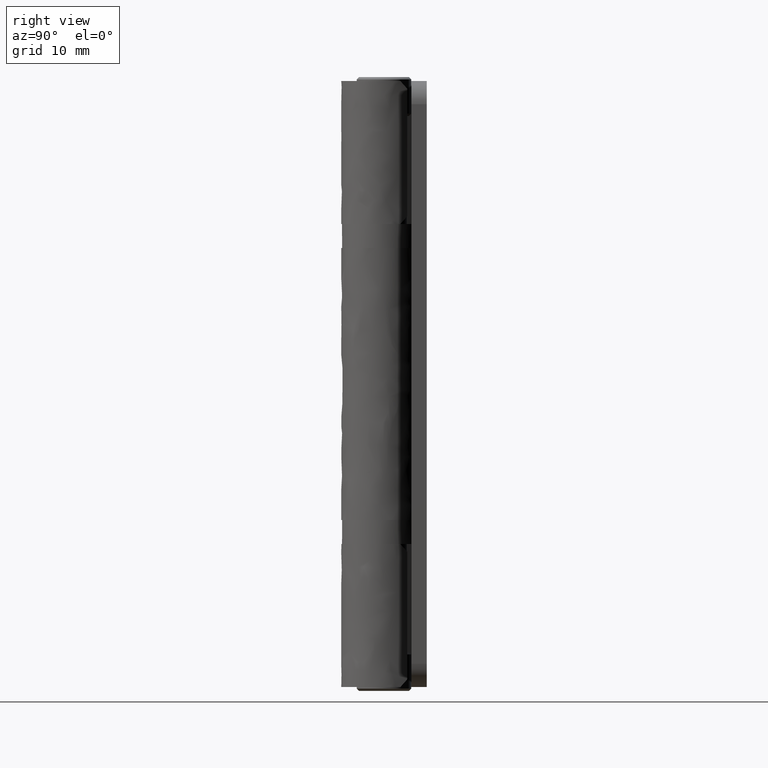
[diagram: clean part render]
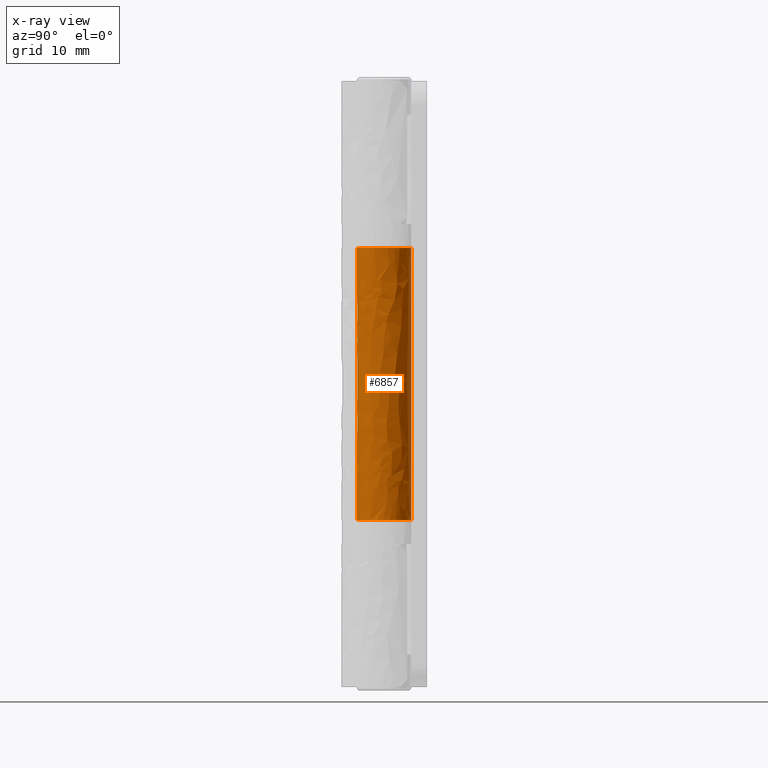
[diagram: x-ray — body ghosted, one internal face saturated and labeled with its STEP entity id]
A machine part, right view, then the same camera in x-ray: the body is ghosted and one INTERNAL B-rep face — a face not visible from any outside direction — is saturated and labeled: STEP entity #6857.
In plain terms, the highlighted face is a freeform B-spline surface patch.
Its self-contained STEP definition (entity closure, byte-faithful):
#5907=CARTESIAN_POINT('',(-2.273737E-013,3.499999999999945,21.500000000000298));
#5908=VERTEX_POINT('',#5907);
#5914=CARTESIAN_POINT('',(-2.273737E-013,3.499999999999945,56.500000000000000));
#5915=VERTEX_POINT('',#5914);
#5916=CARTESIAN_POINT('',(-2.273737E-013,3.499999999999945,56.500000000000000));
#5917=CARTESIAN_POINT('',(-2.273737E-013,3.499999999999945,21.500000000000298));
#5918=QUASI_UNIFORM_CURVE('',1,(#5916,#5917),.UNSPECIFIED.,.F.,.U.);
#5919=EDGE_CURVE('',#5915,#5908,#5918,.T.);
#6118=CARTESIAN_POINT('',(-3.480014533395040,-0.373495444899267,56.500000000000000));
#6119=VERTEX_POINT('',#6118);
#6125=CARTESIAN_POINT('',(-3.441662581124880,0.636363636363667,55.500000000000000));
#6126=VERTEX_POINT('',#6125);
#6127=CARTESIAN_POINT('',(-3.441662581124880,0.636363636363667,55.500000000000000));
#6128=CARTESIAN_POINT('',(-3.503111202640664,0.306330602472713,55.835704574718513));
#6129=CARTESIAN_POINT('',(-3.516002114092028,-0.032698877792117,56.171426969979287));
#6130=CARTESIAN_POINT('',(-3.480014533395040,-0.373495444899267,56.500000000000000));
#6131=B_SPLINE_CURVE_WITH_KNOTS('',3,(#6127,#6128,#6129,#6130),.UNSPECIFIED.,.F.,.U.,(4,4),(1.512627E-009,1.424276179852633),.UNSPECIFIED.);
#6132=EDGE_CURVE('',#6126,#6119,#6131,.T.);
#6147=CARTESIAN_POINT('',(-3.480014533395030,-0.373495444899323,21.500000000000298));
#6148=VERTEX_POINT('',#6147);
#6149=CARTESIAN_POINT('',(-3.441662581124880,0.636363636363667,22.500000000000501));
#6150=VERTEX_POINT('',#6149);
#6151=CARTESIAN_POINT('',(-3.480014533395030,-0.373495444899323,21.500000000000298));
#6152=CARTESIAN_POINT('',(-3.516001896993218,-0.032699328519484,21.828572626278749));
#6153=CARTESIAN_POINT('',(-3.503111424831852,0.306330394216047,22.164295180097909));
#6154=CARTESIAN_POINT('',(-3.441662581124880,0.636363636363667,22.500000000000501));
#6155=B_SPLINE_CURVE_WITH_KNOTS('',3,(#6151,#6152,#6153,#6154),.UNSPECIFIED.,.F.,.U.,(4,4),(1.512530E-009,1.424276178725831),.UNSPECIFIED.);
#6156=EDGE_CURVE('',#6148,#6150,#6155,.T.);
#6223=CARTESIAN_POINT('',(-3.176130804121970,1.470439769289040,44.0));
#6224=VERTEX_POINT('',#6223);
#6230=CARTESIAN_POINT('',(-2.933491418229480,1.909090909090855,43.500000000000000));
#6231=VERTEX_POINT('',#6230);
#6232=CARTESIAN_POINT('',(-2.933491418229480,1.909090909090855,43.500000000000000));
#6233=CARTESIAN_POINT('',(-2.933491418229481,1.909090909090855,43.533082003827197));
#6234=CARTESIAN_POINT('',(-2.935268226098782,1.906368538595716,43.565610477369631));
#6235=CARTESIAN_POINT('',(-2.940457193996995,1.898347078722749,43.613606789237103));
#6236=CARTESIAN_POINT('',(-2.942610002397977,1.895011651136497,43.629471836637457));
#6237=CARTESIAN_POINT('',(-2.947767853464226,1.886978395806003,43.660928330944010));
#6238=CARTESIAN_POINT('',(-2.950786897949255,1.882258291748735,43.676560396193203));
#6239=CARTESIAN_POINT('',(-2.960910143508997,1.866325131890464,43.722026863452278));
#6240=CARTESIAN_POINT('',(-2.969115547072711,1.853290056429638,43.750776064029161));
#6241=CARTESIAN_POINT('',(-2.988226535112963,1.822315378845452,43.805176362972738));
#6242=CARTESIAN_POINT('',(-2.999226453396340,1.804210597410676,43.830921931877313));
#6243=CARTESIAN_POINT('',(-3.022814355478523,1.764406010779363,43.877038361111893));
#6244=CARTESIAN_POINT('',(-3.035490465379588,1.742569740285086,43.897719774348580));
#6245=CARTESIAN_POINT('',(-3.062416401157363,1.694803071477634,43.934217276973612));
#6246=CARTESIAN_POINT('',(-3.076455433196294,1.669230818775957,43.949692090994837));
#6247=CARTESIAN_POINT('',(-3.104763423982007,1.615968328866002,43.974518080153729));
#6248=CARTESIAN_POINT('',(-3.119231152431995,1.587905691723247,43.984052570894683));
#6249=CARTESIAN_POINT('',(-3.148062080690760,1.529951830688237,43.996814479459857));
#6250=CARTESIAN_POINT('',(-3.162232682253413,1.500459532021913,43.999999999999993));
#6251=CARTESIAN_POINT('',(-3.176130804122195,1.470439769289152,44.0));
#6252=B_SPLINE_CURVE_WITH_KNOTS('',3,(#6232,#6233,#6234,#6235,#6236,#6237,#6238,#6239,#6240,#6241,#6242,#6243,#6244,#6245,#6246,#6247,#6248,#6249,#6250,#6251),.UNSPECIFIED.,.F.,.U.,(4,2,2,2,2,2,2,2,2,4),(0.0,0.125000000000001,0.187500000000001,0.250000000000001,0.375000000000001,0.500000000000001,0.625000000000001,0.750000000000000,0.875000000000000,1.0),.UNSPECIFIED.);
#6253=EDGE_CURVE('',#6231,#6224,#6252,.T.);
#6304=CARTESIAN_POINT('',(-2.933491418229480,1.909090909090855,34.500000000000000));
#6305=VERTEX_POINT('',#6304);
#6311=CARTESIAN_POINT('',(-3.176130804121970,1.470439769289040,34.0));
#6312=VERTEX_POINT('',#6311);
#6313=CARTESIAN_POINT('',(-3.176130804121970,1.470439769289040,34.0));
#6314=CARTESIAN_POINT('',(-3.162233760075298,1.500457203940046,34.000000000000007));
#6315=CARTESIAN_POINT('',(-3.148140662265746,1.529782805681875,34.003184960190261));
#6316=CARTESIAN_POINT('',(-3.126756549426839,1.572784074852577,34.012599651850273));
#6317=CARTESIAN_POINT('',(-3.119588094298733,1.586952442807273,34.016516251544843));
#6318=CARTESIAN_POINT('',(-3.105183240995928,1.614956647610204,34.025949503919769));
#6319=CARTESIAN_POINT('',(-3.097926977374161,1.628827447233407,34.031492193387663));
#6320=CARTESIAN_POINT('',(-3.076560230738437,1.669041277694933,34.050187122984177));
#6321=CARTESIAN_POINT('',(-3.062695443204135,1.694296448919701,34.065466859589137));
#6322=CARTESIAN_POINT('',(-3.035919922422670,1.741819180995088,34.101637364038453));
#6323=CARTESIAN_POINT('',(-3.022955951722681,1.764163649846273,34.122716217764847));
#6324=CARTESIAN_POINT('',(-2.999351845731390,1.804002376662014,34.168801856449022));
#6325=CARTESIAN_POINT('',(-2.988559743752423,1.821770548797405,34.193970806779241));
#6326=CARTESIAN_POINT('',(-2.969277493815891,1.853032228311628,34.248669712229727));
#6327=CARTESIAN_POINT('',(-2.960974394019384,1.866222848893717,34.277759082577411));
#6328=CARTESIAN_POINT('',(-2.947532946619854,1.887380886933503,34.337980558499112));
#6329=CARTESIAN_POINT('',(-2.942299740985373,1.895498386424027,34.369530084219633));
#6330=CARTESIAN_POINT('',(-2.935268543098132,1.906368400555690,34.434209620367440));
#6331=CARTESIAN_POINT('',(-2.933491418229670,1.909090909090980,34.466918545845338));
#6332=CARTESIAN_POINT('',(-2.933491418229670,1.909090909090980,34.500000000000000));
#6333=B_SPLINE_CURVE_WITH_KNOTS('',3,(#6313,#6314,#6315,#6316,#6317,#6318,#6319,#6320,#6321,#6322,#6323,#6324,#6325,#6326,#6327,#6328,#6329,#6330,#6331,#6332),.UNSPECIFIED.,.F.,.U.,(4,2,2,2,2,2,2,2,2,4),(0.0,0.124999999999991,0.187499999999987,0.249999999999983,0.374999999999986,0.499999999999989,0.624999999999992,0.749999999999994,0.874999999999997,1.0),.UNSPECIFIED.);
#6334=EDGE_CURVE('',#6312,#6305,#6333,.T.);
#6358=CARTESIAN_POINT('',(-3.441662581124880,0.636363636363667,33.500000000000000));
#6359=VERTEX_POINT('',#6358);
#6360=CARTESIAN_POINT('',(-3.315453453671750,1.121502740315570,34.0));
#6361=VERTEX_POINT('',#6360);
#6362=CARTESIAN_POINT('',(-3.441662581124880,0.636363636363667,33.500000000000000));
#6363=CARTESIAN_POINT('',(-3.441662581124880,0.636363636363667,33.533082003827197));
#6364=CARTESIAN_POINT('',(-3.441075722691668,0.639561126707138,33.565610477369653));
#6365=CARTESIAN_POINT('',(-3.439312910309737,0.648950572848867,33.613606789237103));
#6366=CARTESIAN_POINT('',(-3.438576406685662,0.652851498842296,33.629471836637478));
#6367=CARTESIAN_POINT('',(-3.436782910551166,0.662228064868410,33.660928330944010));
#6368=CARTESIAN_POINT('',(-3.435720726457386,0.667729498941897,33.676560396193203));
#6369=CARTESIAN_POINT('',(-3.432086049430208,0.686253397199018,33.722026863452292));
#6370=CARTESIAN_POINT('',(-3.429057004866590,0.701355275524061,33.750776064029168));
#6371=CARTESIAN_POINT('',(-3.421578535086413,0.736974554083093,33.805176362972730));
#6372=CARTESIAN_POINT('',(-3.417083733975981,0.757676681413870,33.830921931877313));
#6373=CARTESIAN_POINT('',(-3.406769393880999,0.802781100597951,33.877038361111907));
#6374=CARTESIAN_POINT('',(-3.400919755275268,0.827343026408150,33.897719774348602));
#6375=CARTESIAN_POINT('',(-3.387541577818781,0.880519008151908,33.934217276973612));
#6376=CARTESIAN_POINT('',(-3.380106887661217,0.908728224927445,33.949692090994837));
#6377=CARTESIAN_POINT('',(-3.363945437076028,0.966840553126498,33.974518080153750));
#6378=CARTESIAN_POINT('',(-3.355106292799522,0.997150556398815,33.984052570894697));
#6379=CARTESIAN_POINT('',(-3.336092778227975,1.059024288278869,33.996814479459850));
#6380=CARTESIAN_POINT('',(-3.326053535420750,1.090166144889044,34.000000000000007));
#6381=CARTESIAN_POINT('',(-3.315453453672000,1.121502740315648,34.0));
#6382=B_SPLINE_CURVE_WITH_KNOTS('',3,(#6362,#6363,#6364,#6365,#6366,#6367,#6368,#6369,#6370,#6371,#6372,#6373,#6374,#6375,#6376,#6377,#6378,#6379,#6380,#6381),.UNSPECIFIED.,.F.,.U.,(4,2,2,2,2,2,2,2,2,4),(0.0,0.125000000000000,0.187500000000000,0.250000000000000,0.375000000000000,0.500000000000000,0.625000000000000,0.750000000000000,0.875000000000000,1.0),.UNSPECIFIED.);
#6383=EDGE_CURVE('',#6359,#6361,#6382,.T.);
#6439=CARTESIAN_POINT('',(-3.315453453671750,1.121502740315570,44.0));
#6440=VERTEX_POINT('',#6439);
#6441=CARTESIAN_POINT('',(-3.441662581124880,0.636363636363667,44.500000000000000));
#6442=VERTEX_POINT('',#6441);
#6443=CARTESIAN_POINT('',(-3.315453453671750,1.121502740315570,44.0));
#6444=CARTESIAN_POINT('',(-3.326052713366805,1.090168575093255,44.000000000000007));
#6445=CARTESIAN_POINT('',(-3.336033333284652,1.059200954108662,44.003184960190261));
#6446=CARTESIAN_POINT('',(-3.350147135692553,1.013296814711555,44.012599651850259));
#6447=CARTESIAN_POINT('',(-3.354708522280449,0.998087503358995,44.016516251544829));
#6448=CARTESIAN_POINT('',(-3.363553005441117,0.967863168743648,44.025949503919733));
#6449=CARTESIAN_POINT('',(-3.367845780313944,0.952809115208905,44.031492193387642));
#6450=CARTESIAN_POINT('',(-3.380052318721107,0.908937821151197,44.050187122984177));
#6451=CARTESIAN_POINT('',(-3.387394945045052,0.881078498732466,44.065466859589137));
#6452=CARTESIAN_POINT('',(-3.400714160950372,0.828182969009293,44.101637364038460));
#6453=CARTESIAN_POINT('',(-3.406705124097109,0.803054336234588,44.122716217764847));
#6454=CARTESIAN_POINT('',(-3.417031230534679,0.757914005046310,44.168801856449022));
#6455=CARTESIAN_POINT('',(-3.421444857431137,0.737599052332205,44.193970806779227));
#6456=CARTESIAN_POINT('',(-3.428996836073635,0.701653741271537,44.248669712229727));
#6457=CARTESIAN_POINT('',(-3.432062183213526,0.686371804729221,44.277759082577390));
#6458=CARTESIAN_POINT('',(-3.436889820460262,0.661774467464768,44.337980558499133));
#6459=CARTESIAN_POINT('',(-3.438686708116468,0.652284924064667,44.369530084219633));
#6460=CARTESIAN_POINT('',(-3.441075857439836,0.639561445119712,44.434209620367433));
#6461=CARTESIAN_POINT('',(-3.441662581124880,0.636363636363667,44.466918545845338));
#6462=CARTESIAN_POINT('',(-3.441662581124880,0.636363636363667,44.500000000000000));
#6463=B_SPLINE_CURVE_WITH_KNOTS('',3,(#6443,#6444,#6445,#6446,#6447,#6448,#6449,#6450,#6451,#6452,#6453,#6454,#6455,#6456,#6457,#6458,#6459,#6460,#6461,#6462),.UNSPECIFIED.,.F.,.U.,(4,2,2,2,2,2,2,2,2,4),(0.0,0.124999999999991,0.187499999999987,0.249999999999983,0.374999999999986,0.499999999999989,0.624999999999992,0.749999999999994,0.874999999999997,1.0),.UNSPECIFIED.);
#6464=EDGE_CURVE('',#6440,#6442,#6463,.T.);
#6511=CARTESIAN_POINT('',(-3.176130804121970,1.470439769289040,34.0));
#6512=CARTESIAN_POINT('',(-3.228775153472266,1.356733680673887,33.999999999999972));
#6513=CARTESIAN_POINT('',(-3.275304388560334,1.240197294254827,34.000000000000043));
#6514=CARTESIAN_POINT('',(-3.315453453671750,1.121502740315570,34.0));
#6515=B_SPLINE_CURVE_WITH_KNOTS('',3,(#6511,#6512,#6513,#6514),.UNSPECIFIED.,.F.,.U.,(4,4),(3.980334E-010,0.375906569213369),.UNSPECIFIED.);
#6516=EDGE_CURVE('',#6312,#6361,#6515,.T.);
#6543=CARTESIAN_POINT('',(-3.176130804121970,1.470439769289040,44.0));
#6544=CARTESIAN_POINT('',(-3.228774846125707,1.356735488666800,44.000000000000192));
#6545=CARTESIAN_POINT('',(-3.275304500549004,1.240196670524475,43.999999999999922));
#6546=CARTESIAN_POINT('',(-3.315453453671750,1.121502740315570,44.0));
#6547=B_SPLINE_CURVE_WITH_KNOTS('',3,(#6543,#6544,#6545,#6546),.UNSPECIFIED.,.F.,.U.,(4,4),(3.980334E-010,0.375906569213369),.UNSPECIFIED.);
#6548=EDGE_CURVE('',#6224,#6440,#6547,.T.);
#6559=CARTESIAN_POINT('',(-2.933491418229480,1.909090909090855,43.500000000000000));
#6560=CARTESIAN_POINT('',(-2.933491418229480,1.909090909090855,34.500000000000000));
#6561=QUASI_UNIFORM_CURVE('',1,(#6559,#6560),.UNSPECIFIED.,.F.,.U.);
#6562=EDGE_CURVE('',#6231,#6305,#6561,.T.);
#6622=CARTESIAN_POINT('',(2.603578754913070,-2.339097618092016,21.500000000000298));
#6623=VERTEX_POINT('',#6622);
#6624=CARTESIAN_POINT('',(-3.480014533395030,-0.373495444899323,21.500000000000298));
#6625=CARTESIAN_POINT('',(-3.442111592067426,-0.728299798883461,21.500000000000298));
#6626=CARTESIAN_POINT('',(-3.300003192175318,-1.261760684275611,21.500000000000298));
#6627=CARTESIAN_POINT('',(-2.950668286225331,-1.910726849748513,21.500000000000298));
#6628=CARTESIAN_POINT('',(-2.501462169260188,-2.495074898719688,21.500000000000369));
#6629=CARTESIAN_POINT('',(-1.924206385461828,-2.963156496443959,21.500000000000259));
#6630=CARTESIAN_POINT('',(-1.278622263634840,-3.272736950624973,21.500000000000270));
#6631=CARTESIAN_POINT('',(-0.634279680358305,-3.468323059970912,21.500000000000728));
#6632=CARTESIAN_POINT('',(0.040845852686868,-3.527651188812898,21.499999999999329));
#6633=CARTESIAN_POINT('',(0.709172335535077,-3.441354831038661,21.500000000001091));
#6634=CARTESIAN_POINT('',(1.295479031917237,-3.272063074852667,21.499999999999691));
#6635=CARTESIAN_POINT('',(1.957218262689784,-2.943354026112402,21.500000000001130));
#6636=CARTESIAN_POINT('',(2.393254858934483,-2.573359150849173,21.499999999999741));
#6637=CARTESIAN_POINT('',(2.603578754913070,-2.339097618092016,21.500000000000298));
#6638=B_SPLINE_CURVE_WITH_KNOTS('',3,(#6624,#6625,#6626,#6627,#6628,#6629,#6630,#6631,#6632,#6633,#6634,#6635,#6636,#6637),.UNSPECIFIED.,.F.,.U.,(4,1,1,1,1,1,1,1,1,1,1,4),(0.000000113076920,1.070406139153995,1.637114420038585,2.203825665438236,3.274257192780662,3.840974826427532,4.344632255346129,5.289153224515068,5.855860975932982,6.359603976274432,7.115221137410514,8.059686924158600),.UNSPECIFIED.);
#6639=EDGE_CURVE('',#6148,#6623,#6638,.T.);
#6641=CARTESIAN_POINT('',(2.603578754913070,-2.339097618092016,21.500000000000298));
#6642=CARTESIAN_POINT('',(2.842197998888228,-2.073792252302632,21.500000000000298));
#6643=CARTESIAN_POINT('',(3.120792982188343,-1.647099929954440,21.500000000000330));
#6644=CARTESIAN_POINT('',(3.382240738298765,-0.959025027335271,21.500000000000320));
#6645=CARTESIAN_POINT('',(3.496042754304789,-0.401052298192263,21.500000000000249));
#6646=CARTESIAN_POINT('',(3.512831343790151,0.377940342289173,21.500000000000249));
#6647=CARTESIAN_POINT('',(3.333637506639974,1.208189497279847,21.500000000000568));
#6648=CARTESIAN_POINT('',(2.934243653266487,1.954237419422706,21.500000000000199));
#6649=CARTESIAN_POINT('',(2.500987246022356,2.470311346983487,21.500000000000341));
#6650=CARTESIAN_POINT('',(1.974332331025494,2.923673337414327,21.500000000000231));
#6651=CARTESIAN_POINT('',(1.154181807176357,3.366218468272639,21.500000000000430));
#6652=CARTESIAN_POINT('',(0.419802045949982,3.500328809641514,21.500000000000149));
#6653=CARTESIAN_POINT('',(-2.273737E-013,3.499999999999945,21.500000000000298));
#6654=B_SPLINE_CURVE_WITH_KNOTS('',3,(#6641,#6642,#6643,#6644,#6645,#6646,#6647,#6648,#6649,#6650,#6651,#6652,#6653),.UNSPECIFIED.,.F.,.U.,(4,1,1,1,1,1,1,1,1,1,4),(0.000000113078672,1.070405734271580,1.511181072269087,2.203824831818448,2.770519961156767,3.840973373532512,4.722459891571513,5.289151223849270,5.855858760903754,6.800374630843827,8.059683875506339),.UNSPECIFIED.);
#6655=EDGE_CURVE('',#6623,#5908,#6654,.T.);
#6668=CARTESIAN_POINT('',(2.603576717538695,-2.339099885829776,56.500000000000007));
#6669=VERTEX_POINT('',#6668);
#6670=CARTESIAN_POINT('',(-2.273737E-013,3.499999999999945,56.500000000000000));
#6671=CARTESIAN_POINT('',(0.251853941714435,3.500045679259527,56.499999999999957));
#6672=CARTESIAN_POINT('',(0.692590567323051,3.452209340969446,56.500000000000007));
#6673=CARTESIAN_POINT('',(1.316823953482849,3.261284679142117,56.500000000000000));
#6674=CARTESIAN_POINT('',(1.843519255301840,2.995234620876292,56.500000000000092));
#6675=CARTESIAN_POINT('',(2.333818823914310,2.631194546986905,56.499999999999943));
#6676=CARTESIAN_POINT('',(2.828157691606776,2.112515731108795,56.500000000000213));
#6677=CARTESIAN_POINT('',(3.206954848094979,1.475333951182896,56.499999999999623));
#6678=CARTESIAN_POINT('',(3.426456046465318,0.793276917211309,56.500000000000668));
#6679=CARTESIAN_POINT('',(3.509084165867172,0.209490352693858,56.499999999998799));
#6680=CARTESIAN_POINT('',(3.497396404560244,-0.337882555994807,56.500000000000412));
#6681=CARTESIAN_POINT('',(3.391622189003225,-0.938909265506712,56.499999999999652));
#6682=CARTESIAN_POINT('',(3.135414974904007,-1.631951330981964,56.500000000000547));
#6683=CARTESIAN_POINT('',(2.814050306986843,-2.104974298863457,56.499999999999659));
#6684=CARTESIAN_POINT('',(2.603576717538695,-2.339099885829776,56.500000000000007));
#6685=B_SPLINE_CURVE_WITH_KNOTS('',3,(#6670,#6671,#6672,#6673,#6674,#6675,#6676,#6677,#6678,#6679,#6680,#6681,#6682,#6683,#6684),.UNSPECIFIED.,.F.,.U.,(4,1,1,1,1,1,1,1,1,1,1,1,4),(0.000000113076307,0.755562715861582,1.322283684121792,1.951954937436088,2.518666689735396,3.148341114832046,4.092795932321153,4.722461677903851,5.289153224514904,5.855860975932855,6.359603976274341,7.115221137410480,8.059686924158635),.UNSPECIFIED.);
#6686=EDGE_CURVE('',#5915,#6669,#6685,.T.);
#6688=CARTESIAN_POINT('',(2.603576717538695,-2.339099885829776,56.500000000000007));
#6689=CARTESIAN_POINT('',(2.407260137192001,-2.557740001561977,56.500000000000000));
#6690=CARTESIAN_POINT('',(1.991102715653049,-2.917381938810190,56.500000000000007));
#6691=CARTESIAN_POINT('',(1.335391180298997,-3.257969906359215,56.500000000000043));
#6692=CARTESIAN_POINT('',(0.730061429376719,-3.438675594627151,56.500000000000121));
#6693=CARTESIAN_POINT('',(0.082622623816728,-3.522209087330525,56.499999999999737));
#6694=CARTESIAN_POINT('',(-0.676279029272505,-3.469309983479938,56.500000000000249));
#6695=CARTESIAN_POINT('',(-1.481521561469718,-3.209144979852214,56.500000000000107));
#6696=CARTESIAN_POINT('',(-2.127906484361701,-2.807992980421796,56.500000000000007));
#6697=CARTESIAN_POINT('',(-2.588701272066694,-2.375825818855238,56.499999999999822));
#6698=CARTESIAN_POINT('',(-2.926128358053646,-1.945156115847864,56.500000000000391));
#6699=CARTESIAN_POINT('',(-3.287113188335132,-1.302577296195257,56.499999999999069));
#6700=CARTESIAN_POINT('',(-3.439902404992827,-0.749182857696412,56.500000000000547));
#6701=CARTESIAN_POINT('',(-3.480014533395040,-0.373495444899267,56.500000000000000));
#6702=B_SPLINE_CURVE_WITH_KNOTS('',3,(#6688,#6689,#6690,#6691,#6692,#6693,#6694,#6695,#6696,#6697,#6698,#6699,#6700,#6701),.UNSPECIFIED.,.F.,.U.,(4,1,1,1,1,1,1,1,1,1,1,4),(0.000000113077012,0.881513002047837,1.637113800793006,2.203824831817101,2.770519961155536,3.589117681590535,4.470567956941665,5.289151223848562,5.855858760903198,6.359601570690058,6.926293981553918,8.059683875506385),.UNSPECIFIED.);
#6703=EDGE_CURVE('',#6669,#6119,#6702,.T.);
#6804=CARTESIAN_POINT('',(-3.441662581124880,0.636363636363667,55.500000000000000));
#6805=CARTESIAN_POINT('',(-3.441662581124880,0.636363636363667,44.500000000000000));
#6806=QUASI_UNIFORM_CURVE('',1,(#6804,#6805),.UNSPECIFIED.,.F.,.U.);
#6807=EDGE_CURVE('',#6126,#6442,#6806,.T.);
#6813=CARTESIAN_POINT('',(-2.867883956376498,2.006300479180323,57.375000000000000));
#6814=CARTESIAN_POINT('',(-2.867883956376498,2.006300479180323,20.603125000000301));
#6815=CARTESIAN_POINT('',(-5.375144242692621,-1.577674914437229,57.375000000000000));
#6816=CARTESIAN_POINT('',(-5.375144242692621,-1.577674914437229,20.603125000000311));
#6817=CARTESIAN_POINT('',(-1.328606051967236,-3.238025008963990,57.375000000000000));
#6818=CARTESIAN_POINT('',(-1.328606051967236,-3.238025008963990,20.603125000000301));
#6819=CARTESIAN_POINT('',(2.717932138758150,-4.898375103490748,57.375000000000000));
#6820=CARTESIAN_POINT('',(2.717932138758150,-4.898375103490748,20.603125000000311));
#6821=CARTESIAN_POINT('',(3.450553770702137,-0.586241141077033,57.375000000000000));
#6822=CARTESIAN_POINT('',(3.450553770702137,-0.586241141077033,20.603125000000301));
#6823=CARTESIAN_POINT('',(4.183175402646123,3.725892821336684,57.375000000000000));
#6824=CARTESIAN_POINT('',(4.183175402646123,3.725892821336684,20.603125000000311));
#6825=CARTESIAN_POINT('',(-0.184659315085208,3.495125310679427,57.375000000000000));
#6826=CARTESIAN_POINT('',(-0.184659315085208,3.495125310679427,20.603125000000301));
#6834=(BOUNDED_SURFACE()B_SPLINE_SURFACE(1,2,((#6813,#6815,#6817,#6819,#6821,#6823,#6825),(#6814,#6816,#6818,#6820,#6822,#6824,#6826)),.UNSPECIFIED.,.F.,.F.,.U.)B_SPLINE_SURFACE_WITH_KNOTS((2,2),(3,2,2,3),(0.0,36.771874999999703),(0.0,6.727716423168561,13.455432846337120,20.183149269505680),.UNSPECIFIED.)GEOMETRIC_REPRESENTATION_ITEM()RATIONAL_B_SPLINE_SURFACE(((1.0,0.624788514543960,1.0,0.624788514543960,1.0,0.624788514543960,1.0),(1.0,0.624788514543960,1.0,0.624788514543960,1.0,0.624788514543960,1.0)))REPRESENTATION_ITEM('')SURFACE());
#6835=ORIENTED_EDGE('',*,*,#6655,.F.);
#6836=ORIENTED_EDGE('',*,*,#6639,.F.);
#6837=ORIENTED_EDGE('',*,*,#6156,.T.);
#6838=CARTESIAN_POINT('',(-3.441662581124880,0.636363636363667,33.500000000000000));
#6839=CARTESIAN_POINT('',(-3.441662581124880,0.636363636363667,22.500000000000501));
#6840=QUASI_UNIFORM_CURVE('',1,(#6838,#6839),.UNSPECIFIED.,.F.,.U.);
#6841=EDGE_CURVE('',#6359,#6150,#6840,.T.);
#6842=ORIENTED_EDGE('',*,*,#6841,.F.);
#6843=ORIENTED_EDGE('',*,*,#6383,.T.);
#6844=ORIENTED_EDGE('',*,*,#6516,.F.);
#6845=ORIENTED_EDGE('',*,*,#6334,.T.);
#6846=ORIENTED_EDGE('',*,*,#6562,.F.);
#6847=ORIENTED_EDGE('',*,*,#6253,.T.);
#6848=ORIENTED_EDGE('',*,*,#6548,.T.);
#6849=ORIENTED_EDGE('',*,*,#6464,.T.);
#6850=ORIENTED_EDGE('',*,*,#6807,.F.);
#6851=ORIENTED_EDGE('',*,*,#6132,.T.);
#6852=ORIENTED_EDGE('',*,*,#6703,.F.);
#6853=ORIENTED_EDGE('',*,*,#6686,.F.);
#6854=ORIENTED_EDGE('',*,*,#5919,.T.);
#6855=EDGE_LOOP('',(#6835,#6836,#6837,#6842,#6843,#6844,#6845,#6846,#6847,#6848,#6849,#6850,#6851,#6852,#6853,#6854));
#6856=FACE_OUTER_BOUND('',#6855,.T.);
#6857=ADVANCED_FACE('',(#6856),#6834,.F.);